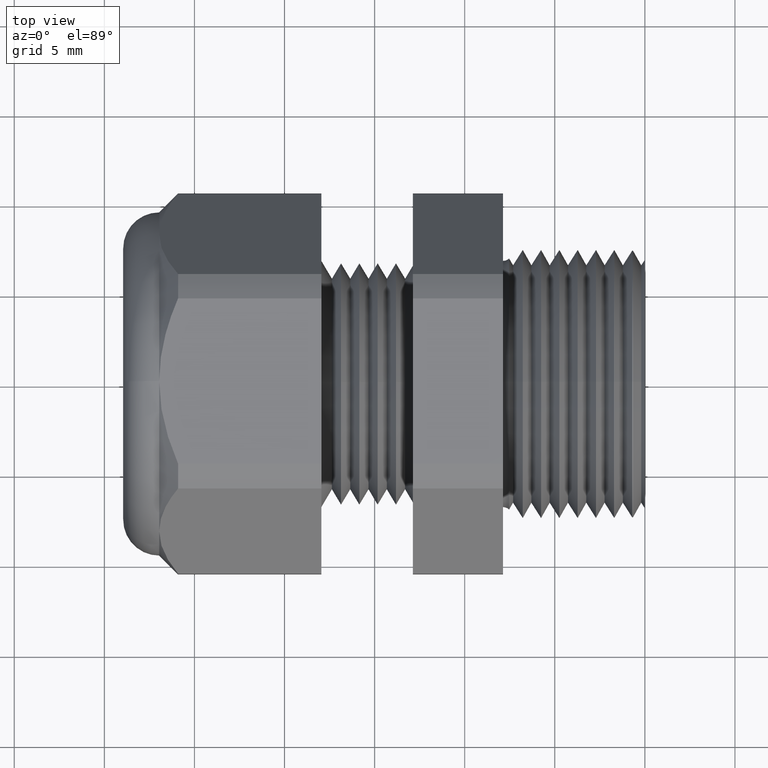
[diagram: clean part render]
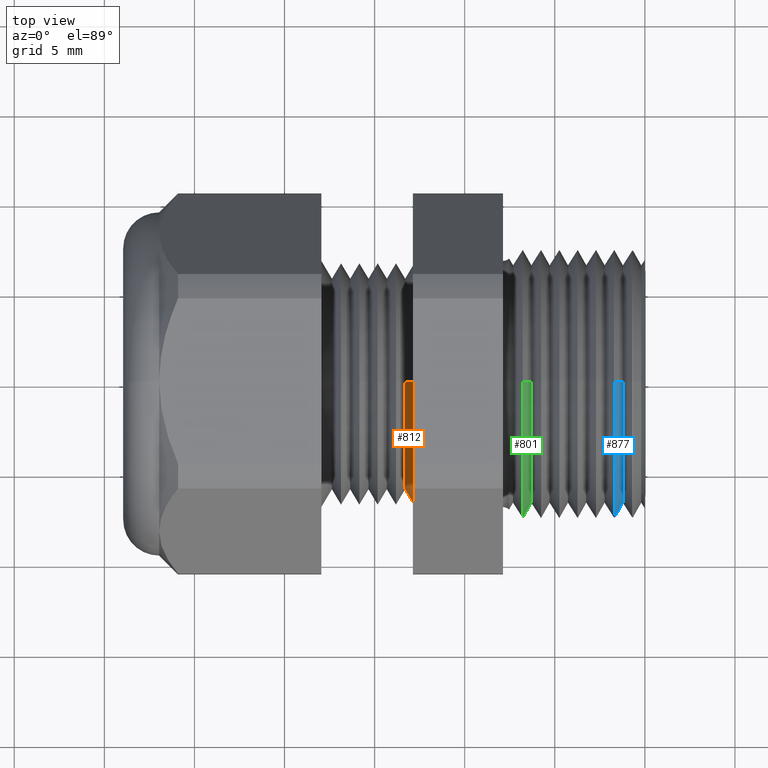
[diagram: same view with three faces highlighted in distinct colors, each labeled with its STEP entity id]
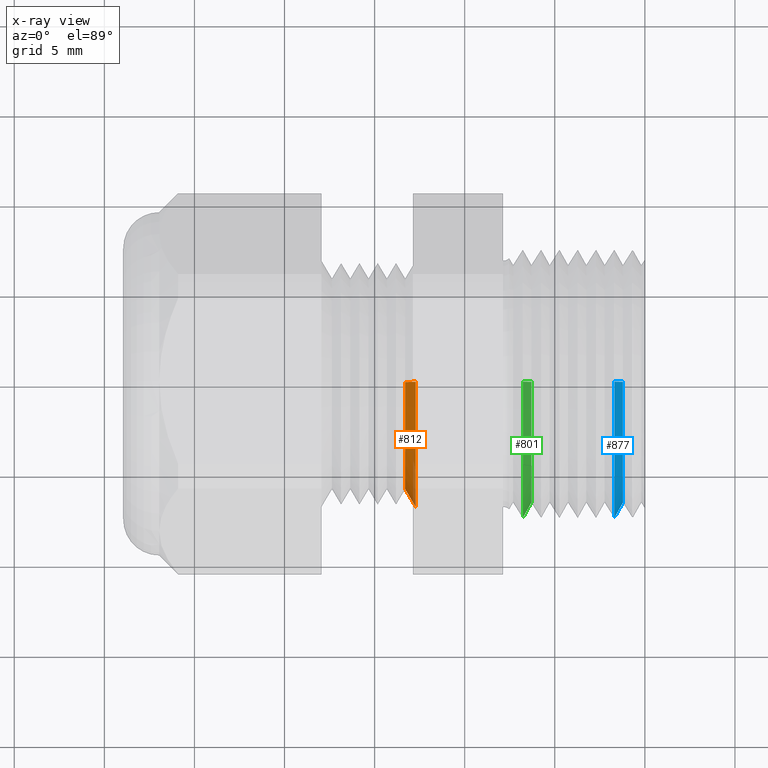
[diagram: x-ray of the same camera — body ghosted, the three highlighted faces saturated]
A machine part, top view with three faces highlighted in distinct colors.
The next image is the same camera in x-ray (body ghosted, the three faces saturated) — at least one of them is partly hidden behind the body in this view.
Their STEP definitions:

[orange] entity #812 — the highlighted conical surface has half-angle 60 deg.
#32 = VERTEX_POINT ( 'NONE', #1165 ) ;
#33 = EDGE_CURVE ( 'NONE', #35, #32, #1164, .T. ) ;
#35 = VERTEX_POINT ( 'NONE', #1160 ) ;
#36 = VERTEX_POINT ( 'NONE', #1222 ) ;
#145 = EDGE_CURVE ( 'NONE', #32, #214, #1389, .T. ) ;
#214 = VERTEX_POINT ( 'NONE', #1507 ) ;
#216 = EDGE_CURVE ( 'NONE', #36, #214, #1569, .T. ) ;
#751 = EDGE_CURVE ( 'NONE', #35, #36, #2522, .T. ) ;
#793 = ORIENTED_EDGE ( 'NONE', *, *, #145, .F. ) ;
#812 = ADVANCED_FACE ( 'NONE', ( #2609 ), #2608, .T. ) ;
#813 = EDGE_LOOP ( 'NONE', ( #814, #815, #816, #793 ) ) ;
#814 = ORIENTED_EDGE ( 'NONE', *, *, #33, .F. ) ;
#815 = ORIENTED_EDGE ( 'NONE', *, *, #751, .T. ) ;
#816 = ORIENTED_EDGE ( 'NONE', *, *, #216, .T. ) ;
#1160 = CARTESIAN_POINT ( 'NONE',  ( -0.5238351230906827000, 0.0000000000000000000, 0.2300000000000000400 ) ) ;
#1161 = DIRECTION ( 'NONE',  ( 0.5000000000000023300, 1.060575238724905100E-016, 0.8660254037844371500 ) ) ;
#1162 = VECTOR ( 'NONE', #1161, 39.37007874015748900 ) ;
#1163 = CARTESIAN_POINT ( 'NONE',  ( -0.5238351230906827000, 2.816687638038912900E-017, 0.2300000000000000400 ) ) ;
#1164 = LINE ( 'NONE', #1163, #1162 ) ;
#1165 = CARTESIAN_POINT ( 'NONE',  ( -0.5007411123230974800, 3.306546357697854300E-017, 0.2700000000000000700 ) ) ;
#1222 = CARTESIAN_POINT ( 'NONE',  ( -0.5238351230906827000, 3.028802685783895900E-017, -0.2300000000000000400 ) ) ;
#1385 = DIRECTION ( 'NONE',  ( 0.0000000000000000000, 0.0000000000000000000, -1.000000000000000000 ) ) ;
#1386 = DIRECTION ( 'NONE',  ( 1.000000000000000000, 0.0000000000000000000, 0.0000000000000000000 ) ) ;
#1387 = CARTESIAN_POINT ( 'NONE',  ( -0.5007411123230974800, 0.0000000000000000000, 0.0000000000000000000 ) ) ;
#1388 = AXIS2_PLACEMENT_3D ( 'NONE', #1387, #1386, #1385 ) ;
#1389 = CIRCLE ( 'NONE', #1388, 0.2700000000000000200 ) ;
#1507 = CARTESIAN_POINT ( 'NONE',  ( -0.5007411123230974800, 0.0000000000000000000, -0.2700000000000000200 ) ) ;
#1566 = DIRECTION ( 'NONE',  ( 0.5000000000000023300, 0.0000000000000000000, -0.8660254037844371500 ) ) ;
#1567 = VECTOR ( 'NONE', #1566, 39.37007874015748900 ) ;
#1568 = CARTESIAN_POINT ( 'NONE',  ( -0.5238351230906827000, 0.0000000000000000000, -0.2300000000000000400 ) ) ;
#1569 = LINE ( 'NONE', #1568, #1567 ) ;
#2514 = DIRECTION ( 'NONE',  ( 0.0000000000000000000, 0.0000000000000000000, -1.000000000000000000 ) ) ;
#2515 = DIRECTION ( 'NONE',  ( 1.000000000000000000, 0.0000000000000000000, 0.0000000000000000000 ) ) ;
#2516 = CARTESIAN_POINT ( 'NONE',  ( -0.5238351230906827000, 0.0000000000000000000, 0.0000000000000000000 ) ) ;
#2517 = AXIS2_PLACEMENT_3D ( 'NONE', #2516, #2515, #2514 ) ;
#2522 = CIRCLE ( 'NONE', #2517, 0.2300000000000000400 ) ;
#2604 = DIRECTION ( 'NONE',  ( 0.0000000000000000000, 0.0000000000000000000, -1.000000000000000000 ) ) ;
#2605 = DIRECTION ( 'NONE',  ( 1.000000000000000000, 0.0000000000000000000, 0.0000000000000000000 ) ) ;
#2606 = AXIS2_PLACEMENT_3D ( 'NONE', #2614, #2605, #2604 ) ;
#2608 = CONICAL_SURFACE ( 'NONE', #2606, 0.2300000000000000400, 1.047197551196595000 ) ;
#2609 = FACE_OUTER_BOUND ( 'NONE', #813, .T. ) ;
#2614 = CARTESIAN_POINT ( 'NONE',  ( -0.5238351230906827000, 0.0000000000000000000, 0.0000000000000000000 ) ) ;

[blue] entity #877 — the highlighted conical surface has half-angle 61.5 deg.
#449 = EDGE_CURVE ( 'NONE', #594, #598, #2037, .T. ) ;
#586 = EDGE_CURVE ( 'NONE', #940, #594, #2217, .T. ) ;
#594 = VERTEX_POINT ( 'NONE', #2255 ) ;
#598 = VERTEX_POINT ( 'NONE', #2249 ) ;
#599 = EDGE_CURVE ( 'NONE', #939, #598, #2248, .T. ) ;
#877 = ADVANCED_FACE ( 'NONE', ( #2714 ), #2713, .T. ) ;
#878 = EDGE_LOOP ( 'NONE', ( #879, #880, #882, #883 ) ) ;
#879 = ORIENTED_EDGE ( 'NONE', *, *, #599, .F. ) ;
#880 = ORIENTED_EDGE ( 'NONE', *, *, #881, .F. ) ;
#881 = EDGE_CURVE ( 'NONE', #940, #939, #2712, .T. ) ;
#882 = ORIENTED_EDGE ( 'NONE', *, *, #586, .T. ) ;
#883 = ORIENTED_EDGE ( 'NONE', *, *, #449, .T. ) ;
#939 = VERTEX_POINT ( 'NONE', #2807 ) ;
#940 = VERTEX_POINT ( 'NONE', #2806 ) ;
#2029 = DIRECTION ( 'NONE',  ( 0.0000000000000000000, 0.0000000000000000000, 1.000000000000000000 ) ) ;
#2030 = DIRECTION ( 'NONE',  ( 1.000000000000000000, 0.0000000000000000000, 0.0000000000000000000 ) ) ;
#2031 = CARTESIAN_POINT ( 'NONE',  ( -0.06653851441843278100, 0.0000000000000000000, 0.0000000000000000000 ) ) ;
#2032 = AXIS2_PLACEMENT_3D ( 'NONE', #2031, #2030, #2029 ) ;
#2037 = CIRCLE ( 'NONE', #2032, 0.2936247366334451300 ) ;
#2217 = LINE ( 'NONE', #2276, #2275 ) ;
#2246 = DIRECTION ( 'NONE',  ( -0.4771587602596063500, 1.076240564057396000E-016, -0.8788171126619663800 ) ) ;
#2247 = CARTESIAN_POINT ( 'NONE',  ( -0.06999999999999984000, 3.673940397442058900E-017, -0.2999999999999999900 ) ) ;
#2248 = LINE ( 'NONE', #2247, #2308 ) ;
#2249 = CARTESIAN_POINT ( 'NONE',  ( -0.06653851441843278100, 3.595937765065675800E-017, -0.2936247366334451800 ) ) ;
#2255 = CARTESIAN_POINT ( 'NONE',  ( -0.06653851441843278100, 0.0000000000000000000, 0.2936247366334451300 ) ) ;
#2274 = DIRECTION ( 'NONE',  ( -0.4771587602596063500, 0.0000000000000000000, 0.8788171126619663800 ) ) ;
#2275 = VECTOR ( 'NONE', #2274, 39.37007874015748900 ) ;
#2276 = CARTESIAN_POINT ( 'NONE',  ( -0.06999999999999984000, 0.0000000000000000000, 0.2999999999999999900 ) ) ;
#2308 = VECTOR ( 'NONE', #2246, 39.37007874015748900 ) ;
#2704 = DIRECTION ( 'NONE',  ( 0.0000000000000000000, 0.0000000000000000000, -1.000000000000000000 ) ) ;
#2705 = DIRECTION ( 'NONE',  ( 1.000000000000000000, 0.0000000000000000000, 0.0000000000000000000 ) ) ;
#2706 = CARTESIAN_POINT ( 'NONE',  ( -0.04796098090543420700, 0.0000000000000000000, 0.0000000000000000000 ) ) ;
#2707 = AXIS2_PLACEMENT_3D ( 'NONE', #2706, #2705, #2704 ) ;
#2708 = DIRECTION ( 'NONE',  ( 0.0000000000000000000, 0.0000000000000000000, 1.000000000000000000 ) ) ;
#2709 = DIRECTION ( 'NONE',  ( -1.000000000000000000, 0.0000000000000000000, 0.0000000000000000000 ) ) ;
#2710 = CARTESIAN_POINT ( 'NONE',  ( -0.06999999999999984000, 0.0000000000000000000, 0.0000000000000000000 ) ) ;
#2711 = AXIS2_PLACEMENT_3D ( 'NONE', #2710, #2709, #2708 ) ;
#2712 = CIRCLE ( 'NONE', #2707, 0.2594091762748933500 ) ;
#2713 = CONICAL_SURFACE ( 'NONE', #2711, 0.2999999999999999900, 1.073377489976514900 ) ;
#2714 = FACE_OUTER_BOUND ( 'NONE', #878, .T. ) ;
#2806 = CARTESIAN_POINT ( 'NONE',  ( -0.04796098090543420700, 0.0000000000000000000, 0.2594091762748933500 ) ) ;
#2807 = CARTESIAN_POINT ( 'NONE',  ( -0.04796098090543420700, 3.386356056315663600E-017, -0.2594091762748933500 ) ) ;

[green] entity #801 — the highlighted conical surface has half-angle 61.5 deg.
#151 = EDGE_CURVE ( 'NONE', #171, #201, #1437, .T. ) ;
#154 = VERTEX_POINT ( 'NONE', #1428 ) ;
#171 = VERTEX_POINT ( 'NONE', #1461 ) ;
#172 = VERTEX_POINT ( 'NONE', #1460 ) ;
#201 = VERTEX_POINT ( 'NONE', #1535 ) ;
#203 = EDGE_CURVE ( 'NONE', #172, #154, #1534, .T. ) ;
#781 = ORIENTED_EDGE ( 'NONE', *, *, #203, .T. ) ;
#782 = ORIENTED_EDGE ( 'NONE', *, *, #800, .F. ) ;
#800 = EDGE_CURVE ( 'NONE', #201, #154, #2627, .T. ) ;
#801 = ADVANCED_FACE ( 'NONE', ( #2622 ), #2621, .T. ) ;
#802 = EDGE_LOOP ( 'NONE', ( #803, #804, #781, #782 ) ) ;
#803 = ORIENTED_EDGE ( 'NONE', *, *, #151, .F. ) ;
#804 = ORIENTED_EDGE ( 'NONE', *, *, #856, .F. ) ;
#856 = EDGE_CURVE ( 'NONE', #172, #171, #2677, .T. ) ;
#1428 = CARTESIAN_POINT ( 'NONE',  ( -0.2667523337684278300, 3.600688674367006500E-017, 0.2940185428871366400 ) ) ;
#1434 = DIRECTION ( 'NONE',  ( -0.4771587602596063500, 1.076240564057396000E-016, -0.8788171126619663800 ) ) ;
#1435 = VECTOR ( 'NONE', #1434, 39.37007874015748900 ) ;
#1436 = CARTESIAN_POINT ( 'NONE',  ( -0.2699999999999998500, 3.673940397442058900E-017, -0.2999999999999999900 ) ) ;
#1437 = LINE ( 'NONE', #1436, #1435 ) ;
#1460 = CARTESIAN_POINT ( 'NONE',  ( -0.2479609809054342000, 0.0000000000000000000, 0.2594091762748933500 ) ) ;
#1461 = CARTESIAN_POINT ( 'NONE',  ( -0.2479609809054342000, 3.388767424156001800E-017, -0.2594091762748933500 ) ) ;
#1531 = DIRECTION ( 'NONE',  ( -0.4771587602596063500, 0.0000000000000000000, 0.8788171126619663800 ) ) ;
#1532 = VECTOR ( 'NONE', #1531, 39.37007874015748900 ) ;
#1533 = CARTESIAN_POINT ( 'NONE',  ( -0.2699999999999998500, 0.0000000000000000000, 0.2999999999999999900 ) ) ;
#1534 = LINE ( 'NONE', #1533, #1532 ) ;
#1535 = CARTESIAN_POINT ( 'NONE',  ( -0.2667523337684278300, 0.0000000000000000000, -0.2940185428871366400 ) ) ;
#2616 = DIRECTION ( 'NONE',  ( 0.0000000000000000000, 0.0000000000000000000, 1.000000000000000000 ) ) ;
#2617 = DIRECTION ( 'NONE',  ( -1.000000000000000000, 0.0000000000000000000, 0.0000000000000000000 ) ) ;
#2618 = CARTESIAN_POINT ( 'NONE',  ( -0.2699999999999998500, 0.0000000000000000000, 0.0000000000000000000 ) ) ;
#2619 = AXIS2_PLACEMENT_3D ( 'NONE', #2618, #2617, #2616 ) ;
#2621 = CONICAL_SURFACE ( 'NONE', #2619, 0.2999999999999999900, 1.073377489976514900 ) ;
#2622 = FACE_OUTER_BOUND ( 'NONE', #802, .T. ) ;
#2623 = DIRECTION ( 'NONE',  ( 0.0000000000000000000, 0.0000000000000000000, 1.000000000000000000 ) ) ;
#2624 = DIRECTION ( 'NONE',  ( -1.000000000000000000, 0.0000000000000000000, 0.0000000000000000000 ) ) ;
#2625 = CARTESIAN_POINT ( 'NONE',  ( -0.2667523337684278300, 0.0000000000000000000, 0.0000000000000000000 ) ) ;
#2626 = AXIS2_PLACEMENT_3D ( 'NONE', #2625, #2624, #2623 ) ;
#2627 = CIRCLE ( 'NONE', #2626, 0.2940185428871366400 ) ;
#2673 = DIRECTION ( 'NONE',  ( 0.0000000000000000000, 0.0000000000000000000, -1.000000000000000000 ) ) ;
#2674 = DIRECTION ( 'NONE',  ( 1.000000000000000000, 0.0000000000000000000, 0.0000000000000000000 ) ) ;
#2675 = CARTESIAN_POINT ( 'NONE',  ( -0.2479609809054342000, 0.0000000000000000000, 0.0000000000000000000 ) ) ;
#2676 = AXIS2_PLACEMENT_3D ( 'NONE', #2675, #2674, #2673 ) ;
#2677 = CIRCLE ( 'NONE', #2676, 0.2594091762748933500 ) ;